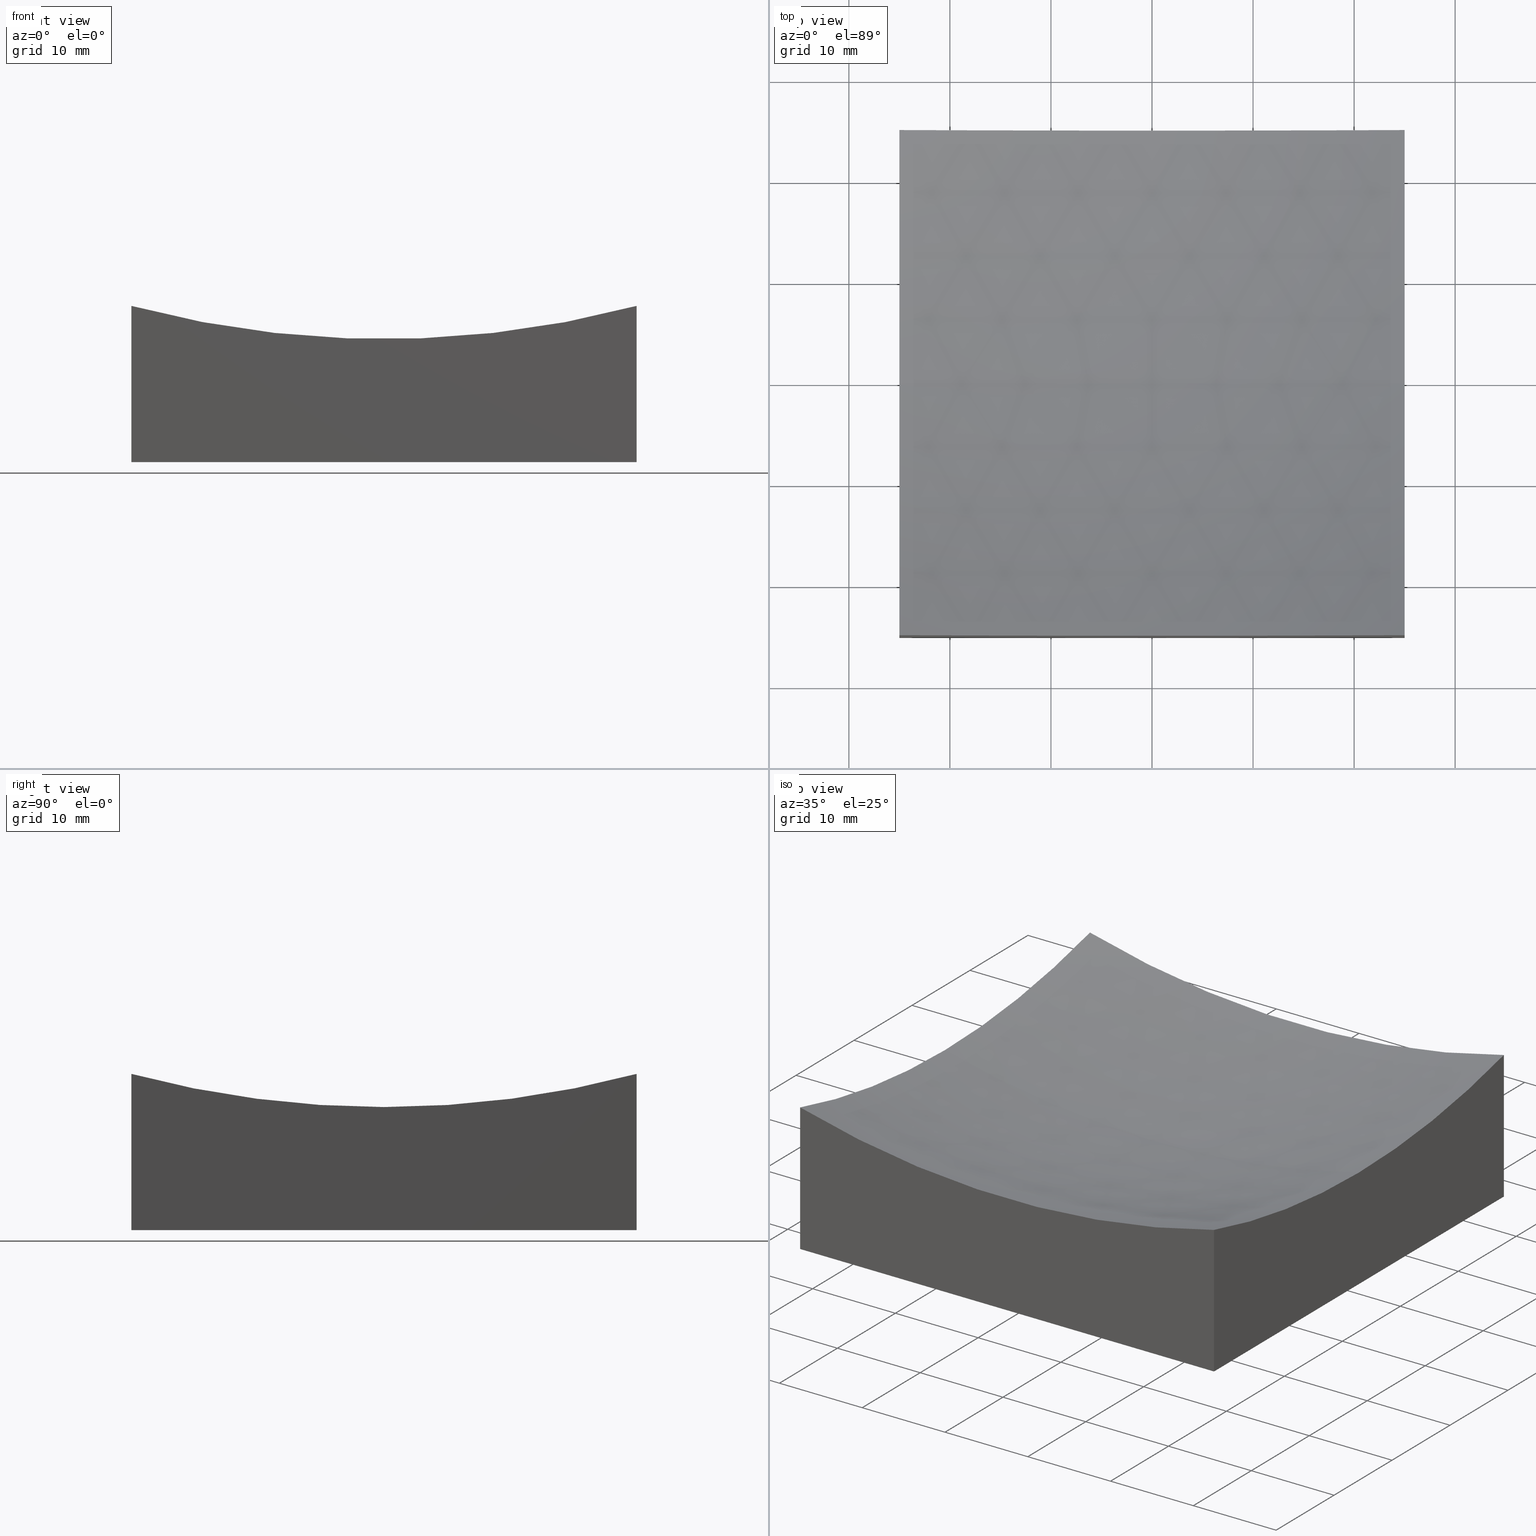
[diagram: canonical four-view strip — front | top / right | iso, engineering-drawing reading convention]
A machine part, canonical four-view strip (front | top / right | iso — engineering-drawing reading convention). The complete STEP part file that produces these views, byte-faithful:
ISO-10303-21;
HEADER;
FILE_DESCRIPTION (( 'STEP AP214' ),
    '1' );
FILE_NAME ('270050.STEP',
    '2020-06-08T02:34:36',
    ( '' ),
    ( '' ),
    'SwSTEP 2.0',
    'SolidWorks 2019',
    '' );
FILE_SCHEMA (( 'AUTOMOTIVE_DESIGN' ));
ENDSEC;

DATA;
#1 = DIRECTION ( 'NONE',  ( 1.000000000000000000, 6.938893903907228378E-17, -0.0000000000000000000 ) ) ;
#2 = UNCERTAINTY_MEASURE_WITH_UNIT (LENGTH_MEASURE( 1.000000000000000082E-05 ), #98, 'distance_accuracy_value', 'NONE');
#3 = EDGE_CURVE ( 'NONE', #17, #194, #18, .T. ) ;
#4 = DIRECTION ( 'NONE',  ( 1.000000000000000000, 0.0000000000000000000, 2.775557561562892830E-16 ) ) ;
#5 = DIRECTION ( 'NONE',  ( 6.938893903907228378E-17, -1.000000000000000000, 0.0000000000000000000 ) ) ;
#6 = DIRECTION ( 'NONE',  ( 0.0000000000000000000, -1.000000000000000000, 0.0000000000000000000 ) ) ;
#7 = CIRCLE ( 'NONE', #88, 99.99999999999994316 ) ;
#8 = CARTESIAN_POINT ( 'NONE',  ( -25.00000000000000355, 24.99999999999999645, 50.00000000000000000 ) ) ;
#9 = SPHERICAL_SURFACE ( 'NONE', #189, 99.99999999999994316 ) ;
#10 = COLOUR_RGB ( '',1.000000000000000000, 1.000000000000000000, 1.000000000000000000 ) ;
#11 = EDGE_CURVE ( 'NONE', #210, #59, #57, .T. ) ;
#12 = SURFACE_STYLE_FILL_AREA ( #89 ) ;
#13 = DIRECTION ( 'NONE',  ( 1.000000000000000000, 6.938893903907228378E-17, -0.0000000000000000000 ) ) ;
#14 = EDGE_LOOP ( 'NONE', ( #209, #251, #94, #20, #68 ) ) ;
#15 = CIRCLE ( 'NONE', #99, 96.82458365518536425 ) ;
#16 = MANIFOLD_SOLID_BREP ( '�г�-��ת2', #62 ) ;
#17 = VERTEX_POINT ( 'NONE', #38 ) ;
#18 = LINE ( 'NONE', #153, #162 ) ;
#19 = AXIS2_PLACEMENT_3D ( 'NONE', #121, #141, #199 ) ;
#20 = ORIENTED_EDGE ( 'NONE', *, *, #175, .F. ) ;
#21 = ORIENTED_EDGE ( 'NONE', *, *, #46, .T. ) ;
#22 = CARTESIAN_POINT ( 'NONE',  ( 24.99999999999999645, 1.734723475976805911E-15, 108.9999999999999858 ) ) ;
#23 = CARTESIAN_POINT ( 'NONE',  ( 24.99999999999999645, 24.99999999999999645, 0.0000000000000000000 ) ) ;
#24 = CARTESIAN_POINT ( 'NONE',  ( -25.00000000000000000, -25.00000000000000711, 50.00000000000000000 ) ) ;
#25 = DIRECTION ( 'NONE',  ( -7.166458808248768397E-17, 1.000000000000000000, 0.0000000000000000000 ) ) ;
#26 = DIRECTION ( 'NONE',  ( 0.0000000000000000000, 1.000000000000000000, 0.0000000000000000000 ) ) ;
#27 = CARTESIAN_POINT ( 'NONE',  ( -25.00000000000000000, -25.00000000000000711, 50.00000000000000000 ) ) ;
#28 = ADVANCED_FACE ( 'NONE', ( #102 ), #232, .T. ) ;
#29 = CIRCLE ( 'NONE', #182, 96.82458365518536425 ) ;
#30 = DIRECTION ( 'NONE',  ( 0.0000000000000000000, 0.0000000000000000000, 1.000000000000000000 ) ) ;
#31 = DIRECTION ( 'NONE',  ( -0.0000000000000000000, 1.000000000000000000, 0.0000000000000000000 ) ) ;
#32 = ORIENTED_EDGE ( 'NONE', *, *, #46, .F. ) ;
#33 =( GEOMETRIC_REPRESENTATION_CONTEXT ( 3 ) GLOBAL_UNCERTAINTY_ASSIGNED_CONTEXT ( ( #2 ) ) GLOBAL_UNIT_ASSIGNED_CONTEXT ( ( #98, #215, #212 ) ) REPRESENTATION_CONTEXT ( 'NONE', 'WORKASPACE' ) );
#34 = ADVANCED_BREP_SHAPE_REPRESENTATION ( '270050', ( #16, #147 ), #229 ) ;
#35 = COLOUR_RGB ( '',1.000000000000000000, 1.000000000000000000, 1.000000000000000000 ) ;
#36 = EDGE_CURVE ( 'NONE', #176, #37, #63, .T. ) ;
#37 = VERTEX_POINT ( 'NONE', #160 ) ;
#38 = CARTESIAN_POINT ( 'NONE',  ( -25.00000000000000000, -25.00000000000000711, 0.0000000000000000000 ) ) ;
#39 = STYLED_ITEM ( 'NONE', ( #190 ), #34 ) ;
#40 = CARTESIAN_POINT ( 'NONE',  ( 24.99999999999999645, 24.99999999999999645, 15.45856533065151339 ) ) ;
#41 = CARTESIAN_POINT ( 'NONE',  ( 25.00000000000000000, -25.00000000000000711, 50.00000000000000000 ) ) ;
#42 = DIRECTION ( 'NONE',  ( 0.0000000000000000000, -0.0000000000000000000, 1.000000000000000000 ) ) ;
#43 = APPLICATION_CONTEXT ( 'automotive_design' ) ;
#44 = VECTOR ( 'NONE', #5, 1000.000000000000000 ) ;
#45 = DIRECTION ( 'NONE',  ( -0.0000000000000000000, -0.0000000000000000000, -1.000000000000000000 ) ) ;
#46 = EDGE_CURVE ( 'NONE', #37, #17, #183, .T. ) ;
#47 = CARTESIAN_POINT ( 'NONE',  ( -25.00000000000000355, 24.99999999999999645, 0.0000000000000000000 ) ) ;
#48 = DIRECTION ( 'NONE',  ( 0.0000000000000000000, -0.0000000000000000000, 1.000000000000000000 ) ) ;
#49 = SHAPE_DEFINITION_REPRESENTATION ( #84, #34 ) ;
#50 = VERTEX_POINT ( 'NONE', #83 ) ;
#51 = FACE_OUTER_BOUND ( 'NONE', #73, .T. ) ;
#52 = ORIENTED_EDGE ( 'NONE', *, *, #131, .F. ) ;
#53 = VECTOR ( 'NONE', #45, 1000.000000000000000 ) ;
#54 = ADVANCED_FACE ( 'NONE', ( #140 ), #9, .F. ) ;
#55 = ORIENTED_EDGE ( 'NONE', *, *, #131, .T. ) ;
#56 = SURFACE_SIDE_STYLE ('',( #231 ) ) ;
#57 = LINE ( 'NONE', #116, #181 ) ;
#58 = VECTOR ( 'NONE', #108, 1000.000000000000000 ) ;
#59 = VERTEX_POINT ( 'NONE', #237 ) ;
#60 = ORIENTED_EDGE ( 'NONE', *, *, #11, .F. ) ;
#61 = DIRECTION ( 'NONE',  ( 0.0000000000000000000, 0.0000000000000000000, -1.000000000000000000 ) ) ;
#62 = CLOSED_SHELL ( 'NONE', ( #54, #208, #241, #218, #28, #86, #236 ) ) ;
#63 = CIRCLE ( 'NONE', #211, 96.82458365518536425 ) ;
#64 = DIRECTION ( 'NONE',  ( -7.166458808248768397E-17, 1.000000000000000000, 0.0000000000000000000 ) ) ;
#65 = DIRECTION ( 'NONE',  ( -0.0000000000000000000, -0.0000000000000000000, -1.000000000000000000 ) ) ;
#66 = CARTESIAN_POINT ( 'NONE',  ( -25.00000000000000355, -1.734723475976808278E-15, 108.9999999999999858 ) ) ;
#67 = DIRECTION ( 'NONE',  ( 0.0000000000000000000, 0.0000000000000000000, 1.000000000000000000 ) ) ;
#68 = ORIENTED_EDGE ( 'NONE', *, *, #126, .F. ) ;
#69 = ORIENTED_EDGE ( 'NONE', *, *, #144, .T. ) ;
#70 = DIRECTION ( 'NONE',  ( -1.000000000000000000, 1.224646799147353207E-16, 0.0000000000000000000 ) ) ;
#71 = VERTEX_POINT ( 'NONE', #198 ) ;
#72 = PRODUCT ( '270050', '270050', '', ( #148 ) ) ;
#73 = EDGE_LOOP ( 'NONE', ( #173, #154, #112, #69, #250 ) ) ;
#74 = PRESENTATION_LAYER_ASSIGNMENT (  '', '', ( #39 ) ) ;
#75 = PRODUCT_DEFINITION_FORMATION_WITH_SPECIFIED_SOURCE ( '�κ�', '', #72, .NOT_KNOWN. ) ;
#76 = EDGE_LOOP ( 'NONE', ( #100, #191, #21, #152 ) ) ;
#77 = EDGE_LOOP ( 'NONE', ( #155, #174, #145, #97, #225 ) ) ;
#78 = PRESENTATION_STYLE_ASSIGNMENT (( #134 ) ) ;
#79 = DIRECTION ( 'NONE',  ( -0.0000000000000000000, -0.0000000000000000000, -1.000000000000000000 ) ) ;
#80 = FACE_OUTER_BOUND ( 'NONE', #101, .T. ) ;
#81 = DIRECTION ( 'NONE',  ( 0.0000000000000000000, 0.0000000000000000000, -1.000000000000000000 ) ) ;
#82 =( GEOMETRIC_REPRESENTATION_CONTEXT ( 3 ) GLOBAL_UNCERTAINTY_ASSIGNED_CONTEXT ( ( #156 ) ) GLOBAL_UNIT_ASSIGNED_CONTEXT ( ( #249, #227, #186 ) ) REPRESENTATION_CONTEXT ( 'NONE', 'WORKASPACE' ) );
#83 = CARTESIAN_POINT ( 'NONE',  ( 4.581509298830655131E-14, 0.0000000000000000000, 9.000000000000035527 ) ) ;
#84 = PRODUCT_DEFINITION_SHAPE ( 'NONE', 'NONE',  #248 ) ;
#85 = FACE_OUTER_BOUND ( 'NONE', #76, .T. ) ;
#86 = ADVANCED_FACE ( 'NONE', ( #80 ), #161, .T. ) ;
#87 = DIRECTION ( 'NONE',  ( 1.000000000000000000, 6.938893903907228378E-17, -0.0000000000000000000 ) ) ;
#88 = AXIS2_PLACEMENT_3D ( 'NONE', #188, #93, #70 ) ;
#89 = FILL_AREA_STYLE ('',( #224 ) ) ;
#90 = DIRECTION ( 'NONE',  ( 1.000000000000000000, 0.0000000000000000000, 2.775557561562892830E-16 ) ) ;
#91 = ORIENTED_EDGE ( 'NONE', *, *, #164, .T. ) ;
#92 = SURFACE_STYLE_USAGE ( .BOTH. , #111 ) ;
#93 = DIRECTION ( 'NONE',  ( 1.224646799147353207E-16, 1.000000000000000000, 3.226112643644443288E-32 ) ) ;
#94 = ORIENTED_EDGE ( 'NONE', *, *, #96, .F. ) ;
#95 = DIRECTION ( 'NONE',  ( -6.938893903907228378E-17, 1.000000000000000000, 0.0000000000000000000 ) ) ;
#96 = EDGE_CURVE ( 'NONE', #130, #194, #242, .T. ) ;
#97 = ORIENTED_EDGE ( 'NONE', *, *, #36, .F. ) ;
#98 =( LENGTH_UNIT ( ) NAMED_UNIT ( * ) SI_UNIT ( .MILLI., .METRE. ) );
#99 = AXIS2_PLACEMENT_3D ( 'NONE', #22, #138, #64 ) ;
#100 = ORIENTED_EDGE ( 'NONE', *, *, #171, .F. ) ;
#101 = EDGE_LOOP ( 'NONE', ( #55, #170, #235, #146 ) ) ;
#102 = FACE_OUTER_BOUND ( 'NONE', #14, .T. ) ;
#103 = AXIS2_PLACEMENT_3D ( 'NONE', #178, #216, #25 ) ;
#104 = CARTESIAN_POINT ( 'NONE',  ( -25.00000000000000000, 3.061616997868388565E-15, 12.17541634481461621 ) ) ;
#105 = CARTESIAN_POINT ( 'NONE',  ( 24.99999999999999645, 24.99999999999999645, 50.00000000000000000 ) ) ;
#106 = LINE ( 'NONE', #179, #44 ) ;
#107 = CARTESIAN_POINT ( 'NONE',  ( -25.00000000000000711, 24.99999999999999645, 15.45856533065151339 ) ) ;
#108 = DIRECTION ( 'NONE',  ( -0.0000000000000000000, -0.0000000000000000000, -1.000000000000000000 ) ) ;
#109 = CARTESIAN_POINT ( 'NONE',  ( 0.0000000000000000000, 0.0000000000000000000, 0.0000000000000000000 ) ) ;
#110 = SPHERICAL_SURFACE ( 'NONE', #244, 99.99999999999994316 ) ;
#111 = SURFACE_SIDE_STYLE ('',( #12 ) ) ;
#112 = ORIENTED_EDGE ( 'NONE', *, *, #126, .T. ) ;
#113 = EDGE_LOOP ( 'NONE', ( #115, #137, #52, #60 ) ) ;
#114 = AXIS2_PLACEMENT_3D ( 'NONE', #27, #205, #48 ) ;
#115 = ORIENTED_EDGE ( 'NONE', *, *, #144, .F. ) ;
#116 = CARTESIAN_POINT ( 'NONE',  ( -25.00000000000000355, 24.99999999999999645, 50.00000000000000000 ) ) ;
#117 = DIRECTION ( 'NONE',  ( -6.938893903907228378E-17, 1.000000000000000000, 0.0000000000000000000 ) ) ;
#118 = EDGE_CURVE ( 'NONE', #149, #210, #177, .T. ) ;
#119 = PRODUCT_DEFINITION_CONTEXT ( 'detailed design', #43, 'design' ) ;
#120 = CARTESIAN_POINT ( 'NONE',  ( 1.334865011070615797E-14, 0.0000000000000000000, 108.9999999999999858 ) ) ;
#121 = CARTESIAN_POINT ( 'NONE',  ( 24.99999999999999645, 1.734723475976805911E-15, 108.9999999999999858 ) ) ;
#122 = PLANE ( 'NONE',  #123 ) ;
#123 = AXIS2_PLACEMENT_3D ( 'NONE', #8, #26, #42 ) ;
#124 = LINE ( 'NONE', #105, #204 ) ;
#125 = DIRECTION ( 'NONE',  ( 1.000000000000000000, 0.0000000000000000000, 0.0000000000000000000 ) ) ;
#126 = EDGE_CURVE ( 'NONE', #71, #166, #15, .T. ) ;
#127 = CIRCLE ( 'NONE', #19, 96.82458365518536425 ) ;
#128 = CARTESIAN_POINT ( 'NONE',  ( -25.00000000000000355, 24.99999999999999645, 50.00000000000000000 ) ) ;
#129 = APPLICATION_PROTOCOL_DEFINITION ( 'draft international standard', 'automotive_design', 1998, #214 ) ;
#130 = VERTEX_POINT ( 'NONE', #23 ) ;
#131 = EDGE_CURVE ( 'NONE', #59, #130, #222, .T. ) ;
#132 = VECTOR ( 'NONE', #243, 1000.000000000000000 ) ;
#133 = EDGE_LOOP ( 'NONE', ( #32, #91, #213, #206, #192 ) ) ;
#134 = SURFACE_STYLE_USAGE ( .BOTH. , #56 ) ;
#135 = FILL_AREA_STYLE ('',( #234 ) ) ;
#136 = EDGE_CURVE ( 'NONE', #50, #71, #201, .T. ) ;
#137 = ORIENTED_EDGE ( 'NONE', *, *, #175, .T. ) ;
#138 = DIRECTION ( 'NONE',  ( 1.000000000000000000, 6.938893903907228378E-17, -0.0000000000000000000 ) ) ;
#139 = STYLED_ITEM ( 'NONE', ( #78 ), #16 ) ;
#140 = FACE_OUTER_BOUND ( 'NONE', #77, .T. ) ;
#141 = DIRECTION ( 'NONE',  ( 1.000000000000000000, 6.938893903907228378E-17, -0.0000000000000000000 ) ) ;
#142 = DIRECTION ( 'NONE',  ( 0.0000000000000000000, 1.000000000000000000, 0.0000000000000000000 ) ) ;
#143 = DIRECTION ( 'NONE',  ( -7.166458808248768397E-17, 1.000000000000000000, 0.0000000000000000000 ) ) ;
#144 = EDGE_CURVE ( 'NONE', #166, #210, #29, .T. ) ;
#145 = ORIENTED_EDGE ( 'NONE', *, *, #164, .F. ) ;
#146 = ORIENTED_EDGE ( 'NONE', *, *, #185, .F. ) ;
#147 = AXIS2_PLACEMENT_3D ( 'NONE', #109, #30, #246 ) ;
#148 = PRODUCT_CONTEXT ( 'NONE', #214, 'mechanical' ) ;
#149 = VERTEX_POINT ( 'NONE', #104 ) ;
#150 = FACE_OUTER_BOUND ( 'NONE', #133, .T. ) ;
#151 = AXIS2_PLACEMENT_3D ( 'NONE', #128, #13, #95 ) ;
#152 = ORIENTED_EDGE ( 'NONE', *, *, #3, .T. ) ;
#153 = CARTESIAN_POINT ( 'NONE',  ( -25.00000000000000000, -25.00000000000000711, 0.0000000000000000000 ) ) ;
#154 = ORIENTED_EDGE ( 'NONE', *, *, #136, .T. ) ;
#155 = ORIENTED_EDGE ( 'NONE', *, *, #136, .F. ) ;
#156 = UNCERTAINTY_MEASURE_WITH_UNIT (LENGTH_MEASURE( 1.000000000000000082E-05 ), #249, 'distance_accuracy_value', 'NONE');
#157 = DIRECTION ( 'NONE',  ( -0.0000000000000000000, 1.000000000000000000, 0.0000000000000000000 ) ) ;
#158 = DIRECTION ( 'NONE',  ( 0.0000000000000000000, 0.0000000000000000000, 1.000000000000000000 ) ) ;
#159 = CARTESIAN_POINT ( 'NONE',  ( 1.334865011070615797E-14, 24.99999999999999645, 108.9999999999999858 ) ) ;
#160 = CARTESIAN_POINT ( 'NONE',  ( -25.00000000000000000, -25.00000000000000711, 15.45856533065151339 ) ) ;
#161 = PLANE ( 'NONE',  #247 ) ;
#162 = VECTOR ( 'NONE', #252, 1000.000000000000000 ) ;
#163 = MECHANICAL_DESIGN_GEOMETRIC_PRESENTATION_REPRESENTATION (  '', ( #139 ), #33 ) ;
#164 = EDGE_CURVE ( 'NONE', #37, #149, #233, .T. ) ;
#165 =( NAMED_UNIT ( * ) PLANE_ANGLE_UNIT ( ) SI_UNIT ( $, .RADIAN. ) );
#166 = VERTEX_POINT ( 'NONE', #40 ) ;
#167 = AXIS2_PLACEMENT_3D ( 'NONE', #196, #1, #117 ) ;
#168 =( NAMED_UNIT ( * ) SI_UNIT ( $, .STERADIAN. ) SOLID_ANGLE_UNIT ( ) );
#169 = CARTESIAN_POINT ( 'NONE',  ( 1.334865011070615797E-14, 0.0000000000000000000, 108.9999999999999858 ) ) ;
#170 = ORIENTED_EDGE ( 'NONE', *, *, #96, .T. ) ;
#171 = EDGE_CURVE ( 'NONE', #176, #194, #220, .T. ) ;
#172 = AXIS2_PLACEMENT_3D ( 'NONE', #66, #87, #143 ) ;
#173 = ORIENTED_EDGE ( 'NONE', *, *, #226, .F. ) ;
#174 = ORIENTED_EDGE ( 'NONE', *, *, #226, .T. ) ;
#175 = EDGE_CURVE ( 'NONE', #166, #130, #124, .T. ) ;
#176 = VERTEX_POINT ( 'NONE', #202 ) ;
#177 = CIRCLE ( 'NONE', #172, 96.82458365518536425 ) ;
#178 = CARTESIAN_POINT ( 'NONE',  ( -25.00000000000000355, -1.734723475976808278E-15, 108.9999999999999858 ) ) ;
#179 = CARTESIAN_POINT ( 'NONE',  ( -25.00000000000000355, 24.99999999999999645, 0.0000000000000000000 ) ) ;
#180 = CARTESIAN_POINT ( 'NONE',  ( 25.00000000000000000, -25.00000000000000711, 0.0000000000000000000 ) ) ;
#181 = VECTOR ( 'NONE', #79, 1000.000000000000000 ) ;
#182 = AXIS2_PLACEMENT_3D ( 'NONE', #159, #142, #158 ) ;
#183 = LINE ( 'NONE', #24, #58 ) ;
#184 = CARTESIAN_POINT ( 'NONE',  ( 24.99999999999999645, 24.99999999999999645, 0.0000000000000000000 ) ) ;
#185 = EDGE_CURVE ( 'NONE', #59, #17, #106, .T. ) ;
#186 =( NAMED_UNIT ( * ) SI_UNIT ( $, .STERADIAN. ) SOLID_ANGLE_UNIT ( ) );
#187 =( LENGTH_UNIT ( ) NAMED_UNIT ( * ) SI_UNIT ( .MILLI., .METRE. ) );
#188 = CARTESIAN_POINT ( 'NONE',  ( 1.334865011070615797E-14, 0.0000000000000000000, 108.9999999999999858 ) ) ;
#189 = AXIS2_PLACEMENT_3D ( 'NONE', #200, #157, #4 ) ;
#190 = PRESENTATION_STYLE_ASSIGNMENT (( #92 ) ) ;
#191 = ORIENTED_EDGE ( 'NONE', *, *, #36, .T. ) ;
#192 = ORIENTED_EDGE ( 'NONE', *, *, #185, .T. ) ;
#193 = EDGE_CURVE ( 'NONE', #176, #71, #127, .T. ) ;
#194 = VERTEX_POINT ( 'NONE', #180 ) ;
#195 = PRODUCT_RELATED_PRODUCT_CATEGORY ( 'part', '', ( #72 ) ) ;
#196 = CARTESIAN_POINT ( 'NONE',  ( 24.99999999999999645, 24.99999999999999645, 50.00000000000000000 ) ) ;
#197 = CARTESIAN_POINT ( 'NONE',  ( 1.334865011070615797E-14, -25.00000000000000711, 108.9999999999999858 ) ) ;
#198 = CARTESIAN_POINT ( 'NONE',  ( 24.99999999999999289, -9.629649721936179265E-32, 12.17541634481461621 ) ) ;
#199 = DIRECTION ( 'NONE',  ( -7.166458808248768397E-17, 1.000000000000000000, 0.0000000000000000000 ) ) ;
#200 = CARTESIAN_POINT ( 'NONE',  ( 1.334865011070615797E-14, 0.0000000000000000000, 108.9999999999999858 ) ) ;
#201 = CIRCLE ( 'NONE', #207, 99.99999999999994316 ) ;
#202 = CARTESIAN_POINT ( 'NONE',  ( 25.00000000000000000, -25.00000000000000711, 15.45856533065151339 ) ) ;
#203 = PLANE ( 'NONE',  #114 ) ;
#204 = VECTOR ( 'NONE', #65, 1000.000000000000000 ) ;
#205 = DIRECTION ( 'NONE',  ( 0.0000000000000000000, 1.000000000000000000, 0.0000000000000000000 ) ) ;
#206 = ORIENTED_EDGE ( 'NONE', *, *, #11, .T. ) ;
#207 = AXIS2_PLACEMENT_3D ( 'NONE', #120, #6, #81 ) ;
#208 = ADVANCED_FACE ( 'NONE', ( #219 ), #122, .T. ) ;
#209 = ORIENTED_EDGE ( 'NONE', *, *, #193, .F. ) ;
#210 = VERTEX_POINT ( 'NONE', #107 ) ;
#211 = AXIS2_PLACEMENT_3D ( 'NONE', #197, #230, #67 ) ;
#212 =( NAMED_UNIT ( * ) SI_UNIT ( $, .STERADIAN. ) SOLID_ANGLE_UNIT ( ) );
#213 = ORIENTED_EDGE ( 'NONE', *, *, #118, .T. ) ;
#214 = APPLICATION_CONTEXT ( 'automotive_design' ) ;
#215 =( NAMED_UNIT ( * ) PLANE_ANGLE_UNIT ( ) SI_UNIT ( $, .RADIAN. ) );
#216 = DIRECTION ( 'NONE',  ( 1.000000000000000000, 6.938893903907228378E-17, -0.0000000000000000000 ) ) ;
#217 = MECHANICAL_DESIGN_GEOMETRIC_PRESENTATION_REPRESENTATION (  '', ( #39 ), #82 ) ;
#218 = ADVANCED_FACE ( 'NONE', ( #85 ), #203, .F. ) ;
#219 = FACE_OUTER_BOUND ( 'NONE', #113, .T. ) ;
#220 = LINE ( 'NONE', #41, #53 ) ;
#221 = PRESENTATION_LAYER_ASSIGNMENT (  '', '', ( #139 ) ) ;
#222 = LINE ( 'NONE', #47, #239 ) ;
#223 = APPLICATION_PROTOCOL_DEFINITION ( 'draft international standard', 'automotive_design', 1998, #43 ) ;
#224 = FILL_AREA_STYLE_COLOUR ( '', #10 ) ;
#225 = ORIENTED_EDGE ( 'NONE', *, *, #193, .T. ) ;
#226 = EDGE_CURVE ( 'NONE', #50, #149, #7, .T. ) ;
#227 =( NAMED_UNIT ( * ) PLANE_ANGLE_UNIT ( ) SI_UNIT ( $, .RADIAN. ) );
#228 = UNCERTAINTY_MEASURE_WITH_UNIT (LENGTH_MEASURE( 1.000000000000000082E-05 ), #187, 'distance_accuracy_value', 'NONE');
#229 =( GEOMETRIC_REPRESENTATION_CONTEXT ( 3 ) GLOBAL_UNCERTAINTY_ASSIGNED_CONTEXT ( ( #228 ) ) GLOBAL_UNIT_ASSIGNED_CONTEXT ( ( #187, #165, #168 ) ) REPRESENTATION_CONTEXT ( 'NONE', 'WORKASPACE' ) );
#230 = DIRECTION ( 'NONE',  ( 0.0000000000000000000, 1.000000000000000000, 0.0000000000000000000 ) ) ;
#231 = SURFACE_STYLE_FILL_AREA ( #135 ) ;
#232 = PLANE ( 'NONE',  #167 ) ;
#233 = CIRCLE ( 'NONE', #103, 96.82458365518536425 ) ;
#234 = FILL_AREA_STYLE_COLOUR ( '', #35 ) ;
#235 = ORIENTED_EDGE ( 'NONE', *, *, #3, .F. ) ;
#236 = ADVANCED_FACE ( 'NONE', ( #51 ), #110, .F. ) ;
#237 = CARTESIAN_POINT ( 'NONE',  ( -25.00000000000000355, 24.99999999999999645, 0.0000000000000000000 ) ) ;
#238 = CARTESIAN_POINT ( 'NONE',  ( 0.0000000000000000000, 0.0000000000000000000, 0.0000000000000000000 ) ) ;
#239 = VECTOR ( 'NONE', #125, 1000.000000000000000 ) ;
#240 = DIRECTION ( 'NONE',  ( -1.000000000000000000, 0.0000000000000000000, -0.0000000000000000000 ) ) ;
#241 = ADVANCED_FACE ( 'NONE', ( #150 ), #245, .F. ) ;
#242 = LINE ( 'NONE', #184, #132 ) ;
#243 = DIRECTION ( 'NONE',  ( 6.938893903907228378E-17, -1.000000000000000000, 0.0000000000000000000 ) ) ;
#244 = AXIS2_PLACEMENT_3D ( 'NONE', #169, #31, #90 ) ;
#245 = PLANE ( 'NONE',  #151 ) ;
#246 = DIRECTION ( 'NONE',  ( 1.000000000000000000, 0.0000000000000000000, 0.0000000000000000000 ) ) ;
#247 = AXIS2_PLACEMENT_3D ( 'NONE', #238, #61, #240 ) ;
#248 = PRODUCT_DEFINITION ( 'δ֪', '', #75, #119 ) ;
#249 =( LENGTH_UNIT ( ) NAMED_UNIT ( * ) SI_UNIT ( .MILLI., .METRE. ) );
#250 = ORIENTED_EDGE ( 'NONE', *, *, #118, .F. ) ;
#251 = ORIENTED_EDGE ( 'NONE', *, *, #171, .T. ) ;
#252 = DIRECTION ( 'NONE',  ( 1.000000000000000000, 0.0000000000000000000, 0.0000000000000000000 ) ) ;
ENDSEC;
END-ISO-10303-21;
